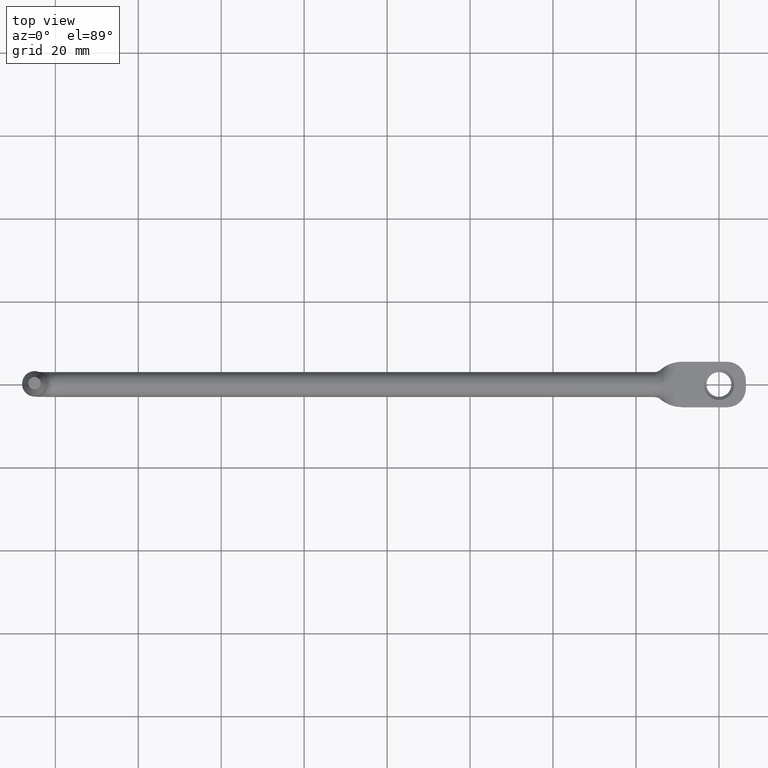
[diagram: clean part render]
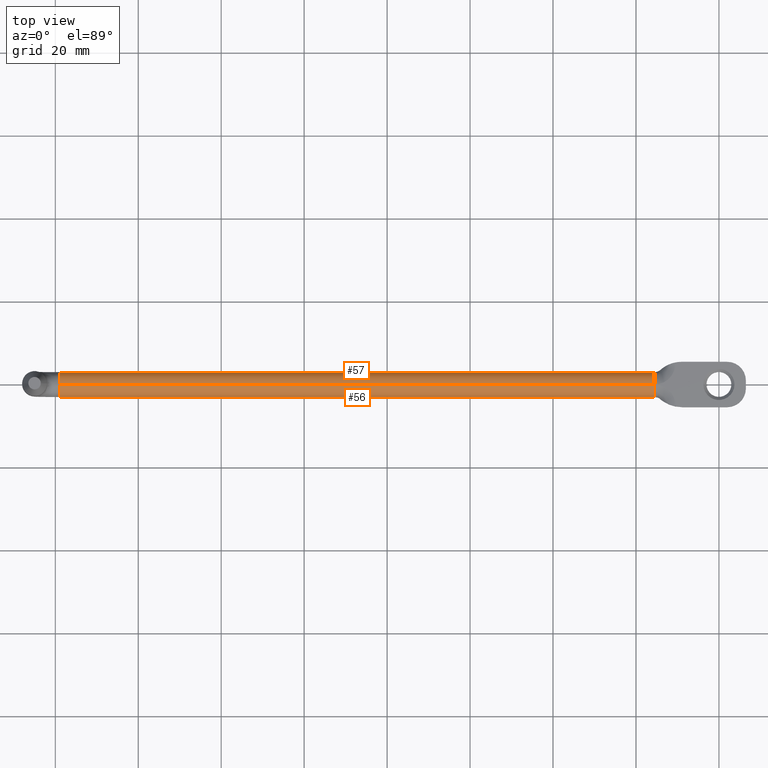
[diagram: same view with one multi-face feature highlighted, each face labeled with its STEP entity id]
A machine part, top view. The highlighted faces form ONE feature: a constant-radius fillet chain: 2 tangent blend faces with common blend radius 3 mm. The faces share edges in the B-rep.
Their STEP definitions:
[1] entity #56 (Cylinder):
#56=ADVANCED_FACE('',(#231),#230,.T.);
#230=CYLINDRICAL_SURFACE('',#559,3.00000000000E+00);
#231=FACE_OUTER_BOUND('',#560,.T.);
#556=CARTESIAN_POINT('',(-8.72500000000E+01,0.00000000000E+00,-3.00000000000E+00));
#557=DIRECTION('',(1.00000000000E+00,-0.00000000000E+00,0.00000000000E+00));
#558=DIRECTION('',(-0.00000000000E+00,-5.66553889765E-16,1.00000000000E+00));
#559=AXIS2_PLACEMENT_3D('',#556,#557,#558);
#560=EDGE_LOOP('',(#742,#743,#744,#745,#746,#747,#748));
#742=ORIENTED_EDGE('',*,*,#802,.F.);
#743=ORIENTED_EDGE('',*,*,#849,.F.);
#744=ORIENTED_EDGE('',*,*,#856,.F.);
#745=ORIENTED_EDGE('',*,*,#818,.T.);
#746=ORIENTED_EDGE('',*,*,#822,.T.);
#747=ORIENTED_EDGE('',*,*,#821,.T.);
#748=ORIENTED_EDGE('',*,*,#857,.T.);
#802=EDGE_CURVE('',#882,#889,#890,.T.);
#818=EDGE_CURVE('',#1001,#994,#1002,.T.);
#821=EDGE_CURVE('',#1022,#1014,#1023,.T.);
#822=EDGE_CURVE('',#994,#1022,#1029,.T.);
#849=EDGE_CURVE('',#1097,#882,#1206,.T.);
#856=EDGE_CURVE('',#1001,#1097,#1252,.T.);
#857=EDGE_CURVE('',#1014,#889,#1258,.T.);
#882=VERTEX_POINT('',#1371);
#889=VERTEX_POINT('',#1376);
#890=(BOUNDED_CURVE() B_SPLINE_CURVE(2,(#1377,#1378,#1379),.UNSPECIFIED.,.F.,.F.) B_SPLINE_CURVE_WITH_KNOTS((3,3),(-4.26038831569E+00,-3.14159265359E+00),.UNSPECIFIED.) CURVE() GEOMETRIC_REPRESENTATION_ITEM() RATIONAL_B_SPLINE_CURVE((1.00000000000E+00,8.47574821217E-01,1.00000000000E+00)) REPRESENTATION_ITEM('') );
#994=VERTEX_POINT('',#1474);
#1001=VERTEX_POINT('',#1497);
#1002=CIRCLE('',#1501,3.00000000000E+00);
#1014=VERTEX_POINT('',#1506);
#1022=VERTEX_POINT('',#1512);
#1023=CIRCLE('',#1516,3.00000000000E+00);
#1029=(BOUNDED_CURVE() B_SPLINE_CURVE(3,(#1517,#1518,#1519,#1520),.UNSPECIFIED.,.F.,.F.) B_SPLINE_CURVE_WITH_KNOTS((4,4),(-8.82567373458E-04,1.18322652100E-04),.UNSPECIFIED.) CURVE() GEOMETRIC_REPRESENTATION_ITEM() RATIONAL_B_SPLINE_CURVE((1.00000000000E+00,1.00000000000E+00,1.00000000000E+00,1.00000000000E+00)) REPRESENTATION_ITEM('') );
#1097=VERTEX_POINT('',#1563);
#1206=CIRCLE('',#1658,3.00000000000E+00);
#1252=(BOUNDED_CURVE() B_SPLINE_CURVE(1,(#1686,#1687),.UNSPECIFIED.,.F.,.F.) B_SPLINE_CURVE_WITH_KNOTS((2,2),(6.11620796842E-02,9.38837920524E-01),.UNSPECIFIED.) CURVE() GEOMETRIC_REPRESENTATION_ITEM() RATIONAL_B_SPLINE_CURVE((1.00000000000E+00,1.00000000000E+00)) REPRESENTATION_ITEM('') );
#1258=(BOUNDED_CURVE() B_SPLINE_CURVE(1,(#1688,#1689),.UNSPECIFIED.,.F.,.F.) B_SPLINE_CURVE_WITH_KNOTS((2,2),(6.72782874618E-02,9.35779816514E-01),.UNSPECIFIED.) CURVE() GEOMETRIC_REPRESENTATION_ITEM() RATIONAL_B_SPLINE_CURVE((7.50000000000E-01,7.50000000000E-01)) REPRESENTATION_ITEM('') );
#1371=CARTESIAN_POINT('',(-1.55000000000E+01,-2.69872524197E+00,-4.31029846537E+00));
#1376=CARTESIAN_POINT('',(-1.60000000000E+01,-3.62168733226E-12,-6.00000000000E+00));
#1377=CARTESIAN_POINT('',(-1.55000000000E+01,-2.69872524197E+00,-4.31029846537E+00));
#1378=CARTESIAN_POINT('',(-1.60000000000E+01,-1.87833297182E+00,-6.00000000000E+00));
#1379=CARTESIAN_POINT('',(-1.60000000000E+01,1.69964953570E-15,-6.00000000000E+00));
#1474=CARTESIAN_POINT('',(-1.59000000000E+02,-2.99978740743E+00,-2.96428571429E+00));
#1497=CARTESIAN_POINT('',(-1.59000000000E+02,-4.19681458639E-10,4.44059854432E-16));
#1498=CARTESIAN_POINT('',(-1.59000000000E+02,0.00000000000E+00,-3.00000000000E+00));
#1499=DIRECTION('',(1.00000000000E+00,0.00000000000E+00,-0.00000000000E+00));
#1500=DIRECTION('',(-0.00000000000E+00,-1.59583973703E-07,-1.00000000000E+00));
#1501=AXIS2_PLACEMENT_3D('',#1498,#1499,#1500);
#1506=CARTESIAN_POINT('',(-1.58000000000E+02,4.05514949428E-07,-6.00000000000E+00));
#1512=CARTESIAN_POINT('',(-1.58000000000E+02,-3.00000000000E+00,-3.00000000000E+00));
#1513=CARTESIAN_POINT('',(-1.58000000000E+02,0.00000000000E+00,-3.00000000000E+00));
#1514=DIRECTION('',(1.00000000000E+00,0.00000000000E+00,0.00000000000E+00));
#1515=DIRECTION('',(-0.00000000000E+00,1.55692757647E-10,1.00000000000E+00));
#1516=AXIS2_PLACEMENT_3D('',#1513,#1514,#1515);
#1517=CARTESIAN_POINT('',(-1.59000000000E+02,-2.99978740743E+00,-2.96428571429E+00));
#1518=CARTESIAN_POINT('',(-1.58667289934E+02,-3.00007034421E+00,-2.98805071897E+00));
#1519=CARTESIAN_POINT('',(-1.58333627030E+02,-3.00000000000E+00,-2.99859016848E+00));
#1520=CARTESIAN_POINT('',(-1.58000000000E+02,-3.00000000000E+00,-3.00000000000E+00));
#1563=CARTESIAN_POINT('',(-1.55000000000E+01,0.00000000000E+00,0.00000000000E+00));
#1655=CARTESIAN_POINT('',(-1.55000000000E+01,0.00000000000E+00,-3.00000000000E+00));
#1656=DIRECTION('',(1.00000000000E+00,0.00000000000E+00,-0.00000000000E+00));
#1657=DIRECTION('',(-0.00000000000E+00,-0.00000000000E+00,-1.00000000000E+00));
#1658=AXIS2_PLACEMENT_3D('',#1655,#1656,#1657);
#1686=CARTESIAN_POINT('',(-1.58999999972E+02,-1.69966166929E-15,0.00000000000E+00));
#1687=CARTESIAN_POINT('',(-1.54999999943E+01,-1.69966166929E-15,0.00000000000E+00));
#1688=CARTESIAN_POINT('',(-1.58000000000E+02,1.92438657602E-15,-6.00000000000E+00));
#1689=CARTESIAN_POINT('',(-1.60000000000E+01,1.92438657602E-15,-6.00000000000E+00));
[2] entity #57 (Cylinder):
#57=ADVANCED_FACE('',(#241),#240,.T.);
#240=CYLINDRICAL_SURFACE('',#564,3.00000000000E+00);
#241=FACE_OUTER_BOUND('',#565,.T.);
#561=CARTESIAN_POINT('',(-8.72500000000E+01,0.00000000000E+00,-3.00000000000E+00));
#562=DIRECTION('',(1.00000000000E+00,-0.00000000000E+00,0.00000000000E+00));
#563=DIRECTION('',(-0.00000000000E+00,-5.66553889765E-16,1.00000000000E+00));
#564=AXIS2_PLACEMENT_3D('',#561,#562,#563);
#565=EDGE_LOOP('',(#749,#750,#751,#752,#753,#754,#755));
#749=ORIENTED_EDGE('',*,*,#820,.T.);
#750=ORIENTED_EDGE('',*,*,#827,.T.);
#751=ORIENTED_EDGE('',*,*,#819,.T.);
#752=ORIENTED_EDGE('',*,*,#856,.T.);
#753=ORIENTED_EDGE('',*,*,#851,.T.);
#754=ORIENTED_EDGE('',*,*,#803,.F.);
#755=ORIENTED_EDGE('',*,*,#857,.F.);
#803=EDGE_CURVE('',#889,#896,#897,.T.);
#819=EDGE_CURVE('',#973,#1001,#1008,.T.);
#820=EDGE_CURVE('',#1014,#1015,#1016,.T.);
#827=EDGE_CURVE('',#1015,#973,#1062,.T.);
#851=EDGE_CURVE('',#1097,#896,#1218,.T.);
#856=EDGE_CURVE('',#1001,#1097,#1252,.T.);
#857=EDGE_CURVE('',#1014,#889,#1258,.T.);
#889=VERTEX_POINT('',#1376);
#896=VERTEX_POINT('',#1380);
#897=(BOUNDED_CURVE() B_SPLINE_CURVE(2,(#1381,#1382,#1383),.UNSPECIFIED.,.F.,.F.) B_SPLINE_CURVE_WITH_KNOTS((3,3),(-3.14159265359E+00,-2.02279699149E+00),.UNSPECIFIED.) CURVE() GEOMETRIC_REPRESENTATION_ITEM() RATIONAL_B_SPLINE_CURVE((1.00000000000E+00,8.47574821217E-01,1.00000000000E+00)) REPRESENTATION_ITEM('') );
#973=VERTEX_POINT('',#1441);
#1001=VERTEX_POINT('',#1497);
#1008=CIRCLE('',#1505,3.00000000000E+00);
#1014=VERTEX_POINT('',#1506);
#1015=VERTEX_POINT('',#1507);
#1016=CIRCLE('',#1511,3.00000000000E+00);
#1062=(BOUNDED_CURVE() B_SPLINE_CURVE(3,(#1540,#1541,#1542,#1543),.UNSPECIFIED.,.F.,.F.) B_SPLINE_CURVE_WITH_KNOTS((4,4),(-1.18322652100E-04,8.82567373458E-04),.UNSPECIFIED.) CURVE() GEOMETRIC_REPRESENTATION_ITEM() RATIONAL_B_SPLINE_CURVE((1.00000000000E+00,1.00000000000E+00,1.00000000000E+00,1.00000000000E+00)) REPRESENTATION_ITEM('') );
#1097=VERTEX_POINT('',#1563);
#1218=CIRCLE('',#1665,3.00000000000E+00);
#1252=(BOUNDED_CURVE() B_SPLINE_CURVE(1,(#1686,#1687),.UNSPECIFIED.,.F.,.F.) B_SPLINE_CURVE_WITH_KNOTS((2,2),(6.11620796842E-02,9.38837920524E-01),.UNSPECIFIED.) CURVE() GEOMETRIC_REPRESENTATION_ITEM() RATIONAL_B_SPLINE_CURVE((1.00000000000E+00,1.00000000000E+00)) REPRESENTATION_ITEM('') );
#1258=(BOUNDED_CURVE() B_SPLINE_CURVE(1,(#1688,#1689),.UNSPECIFIED.,.F.,.F.) B_SPLINE_CURVE_WITH_KNOTS((2,2),(6.72782874618E-02,9.35779816514E-01),.UNSPECIFIED.) CURVE() GEOMETRIC_REPRESENTATION_ITEM() RATIONAL_B_SPLINE_CURVE((7.50000000000E-01,7.50000000000E-01)) REPRESENTATION_ITEM('') );
#1376=CARTESIAN_POINT('',(-1.60000000000E+01,-3.62168733226E-12,-6.00000000000E+00));
#1380=CARTESIAN_POINT('',(-1.55000000000E+01,2.69872524197E+00,-4.31029846537E+00));
#1381=CARTESIAN_POINT('',(-1.60000000000E+01,1.69964953570E-15,-6.00000000000E+00));
#1382=CARTESIAN_POINT('',(-1.60000000000E+01,1.87833297182E+00,-6.00000000000E+00));
#1383=CARTESIAN_POINT('',(-1.55000000000E+01,2.69872524197E+00,-4.31029846537E+00));
#1441=CARTESIAN_POINT('',(-1.59000000000E+02,2.99978740743E+00,-2.96428571429E+00));
#1497=CARTESIAN_POINT('',(-1.59000000000E+02,-4.19681458639E-10,4.44059854432E-16));
#1502=CARTESIAN_POINT('',(-1.59000000000E+02,0.00000000000E+00,-3.00000000000E+00));
#1503=DIRECTION('',(1.00000000000E+00,0.00000000000E+00,-0.00000000000E+00));
#1504=DIRECTION('',(-0.00000000000E+00,-1.59583973703E-07,-1.00000000000E+00));
#1505=AXIS2_PLACEMENT_3D('',#1502,#1503,#1504);
#1506=CARTESIAN_POINT('',(-1.58000000000E+02,4.05514949428E-07,-6.00000000000E+00));
#1507=CARTESIAN_POINT('',(-1.58000000000E+02,3.00000000000E+00,-3.00000000000E+00));
#1508=CARTESIAN_POINT('',(-1.58000000000E+02,0.00000000000E+00,-3.00000000000E+00));
#1509=DIRECTION('',(1.00000000000E+00,0.00000000000E+00,0.00000000000E+00));
#1510=DIRECTION('',(-0.00000000000E+00,1.55692757647E-10,1.00000000000E+00));
#1511=AXIS2_PLACEMENT_3D('',#1508,#1509,#1510);
#1540=CARTESIAN_POINT('',(-1.58000000000E+02,3.00000000000E+00,-3.00000000000E+00));
#1541=CARTESIAN_POINT('',(-1.58333627030E+02,3.00000000000E+00,-2.99859016848E+00));
#1542=CARTESIAN_POINT('',(-1.58667289934E+02,3.00007034421E+00,-2.98805071897E+00));
#1543=CARTESIAN_POINT('',(-1.59000000000E+02,2.99978740743E+00,-2.96428571429E+00));
#1563=CARTESIAN_POINT('',(-1.55000000000E+01,0.00000000000E+00,0.00000000000E+00));
#1662=CARTESIAN_POINT('',(-1.55000000000E+01,0.00000000000E+00,-3.00000000000E+00));
#1663=DIRECTION('',(-1.00000000000E+00,0.00000000000E+00,0.00000000000E+00));
#1664=DIRECTION('',(-0.00000000000E+00,-0.00000000000E+00,-1.00000000000E+00));
#1665=AXIS2_PLACEMENT_3D('',#1662,#1663,#1664);
#1686=CARTESIAN_POINT('',(-1.58999999972E+02,-1.69966166929E-15,0.00000000000E+00));
#1687=CARTESIAN_POINT('',(-1.54999999943E+01,-1.69966166929E-15,0.00000000000E+00));
#1688=CARTESIAN_POINT('',(-1.58000000000E+02,1.92438657602E-15,-6.00000000000E+00));
#1689=CARTESIAN_POINT('',(-1.60000000000E+01,1.92438657602E-15,-6.00000000000E+00));